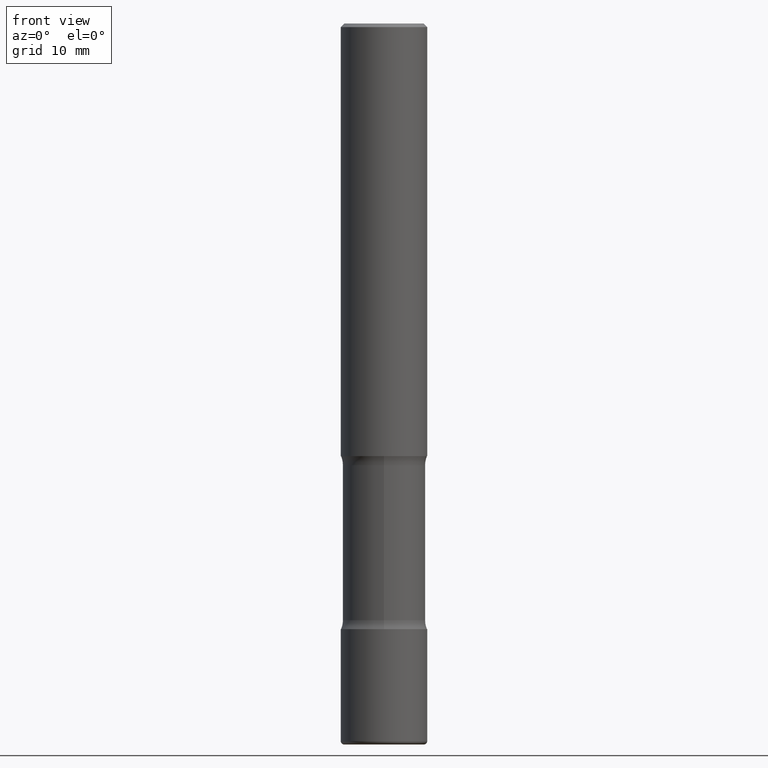
[diagram: clean part render]
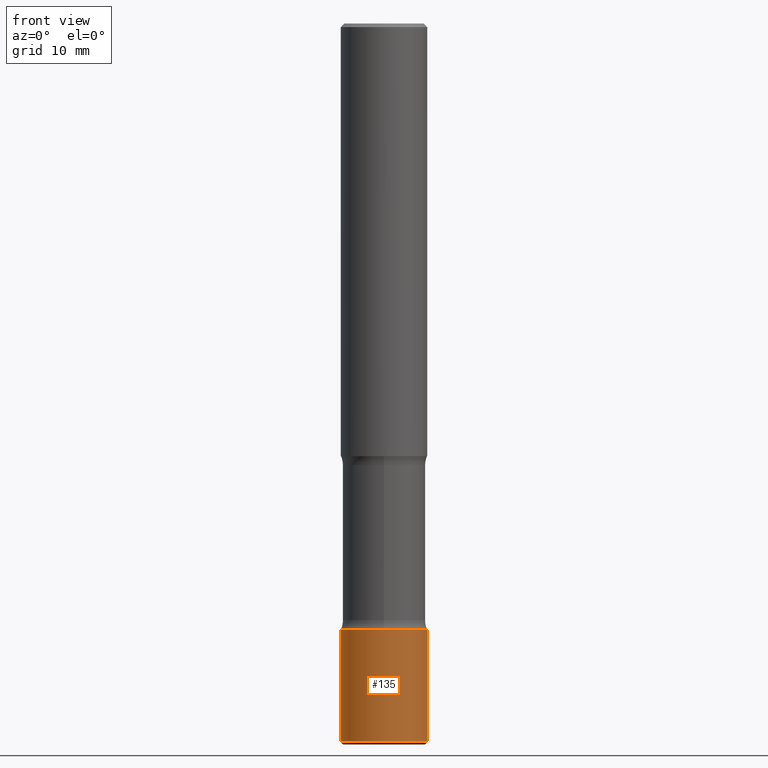
[diagram: same view with one face highlighted and labeled with its STEP entity id]
A machine part, front view. The second image highlights one B-rep face of the part: STEP entity #135.
In plain terms, the highlighted cylindrical surface (partial cylindrical patch) has radius 5.9995 mm, axis along (-0, 0, 1).
Its self-contained STEP definition (entity closure, byte-faithful):
#11 = VERTEX_POINT ( 'NONE', #276 ) ;
#14 = DIRECTION ( 'NONE',  ( 1.000000000000000000, -6.982962677686266711E-15, 0.000000000000000000 ) ) ;
#25 = FACE_OUTER_BOUND ( 'NONE', #315, .T. ) ;
#32 = CARTESIAN_POINT ( 'NONE',  ( -0.2362000000000001598, 1.678301941865357775E-15, -1.161852468318209598E-29 ) ) ;
#48 = ORIENTED_EDGE ( 'NONE', *, *, #444, .F. ) ;
#66 = AXIS2_PLACEMENT_3D ( 'NONE', #362, #448, #328 ) ;
#78 = CARTESIAN_POINT ( 'NONE',  ( -0.2362000000000002431, -1.093362695030385570E-14, -3.307100000000000151 ) ) ;
#81 = LINE ( 'NONE', #297, #88 ) ;
#88 = VECTOR ( 'NONE', #251, 39.37007874015748143 ) ;
#90 = ORIENTED_EDGE ( 'NONE', *, *, #142, .T. ) ;
#135 = ADVANCED_FACE ( 'NONE', ( #25 ), #147, .T. ) ;
#142 = EDGE_CURVE ( 'NONE', #420, #11, #317, .T. ) ;
#147 = CYLINDRICAL_SURFACE ( 'NONE', #436, 0.2362000000000001598 ) ;
#154 = LINE ( 'NONE', #32, #350 ) ;
#159 = ORIENTED_EDGE ( 'NONE', *, *, #558, .T. ) ;
#161 = CARTESIAN_POINT ( 'NONE',  ( 8.087409888934865187E-29, -1.154667793568816723E-14, -3.307100000000000151 ) ) ;
#192 = CARTESIAN_POINT ( 'NONE',  ( 0.000000000000000000, 0.000000000000000000, 0.000000000000000000 ) ) ;
#194 = CIRCLE ( 'NONE', #335, 0.2362000000000002153 ) ;
#198 = DIRECTION ( 'NONE',  ( -2.445468806185136877E-29, 3.491481338843145188E-15, 1.000000000000000000 ) ) ;
#251 = DIRECTION ( 'NONE',  ( -2.445468806185136877E-29, 3.491481338843145188E-15, 1.000000000000000000 ) ) ;
#258 = EDGE_CURVE ( 'NONE', #547, #313, #194, .T. ) ;
#276 = CARTESIAN_POINT ( 'NONE',  ( 0.2362000000000001043, -1.532655563311975191E-14, -3.917300000000000448 ) ) ;
#297 = CARTESIAN_POINT ( 'NONE',  ( 0.2362000000000001598, -1.649375784469497314E-15, 1.151752954443000929E-29 ) ) ;
#307 = DIRECTION ( 'NONE',  ( -2.445468806185136597E-29, 3.491481338843145583E-15, 1.000000000000000000 ) ) ;
#311 = CARTESIAN_POINT ( 'NONE',  ( 0.2362000000000002153, -1.319605372015766534E-14, -3.307100000000000151 ) ) ;
#313 = VERTEX_POINT ( 'NONE', #311 ) ;
#315 = EDGE_LOOP ( 'NONE', ( #48, #90, #159, #480 ) ) ;
#317 = CIRCLE ( 'NONE', #66, 0.2362000000000001321 ) ;
#320 = DIRECTION ( 'NONE',  ( 1.000000000000000000, -6.982962677686266711E-15, 4.876176775795936353E-29 ) ) ;
#328 = DIRECTION ( 'NONE',  ( 1.000000000000000000, -6.982962677686269077E-15, 0.000000000000000000 ) ) ;
#335 = AXIS2_PLACEMENT_3D ( 'NONE', #161, #307, #14 ) ;
#350 = VECTOR ( 'NONE', #198, 39.37007874015748143 ) ;
#362 = CARTESIAN_POINT ( 'NONE',  ( 9.579634954469036932E-29, -1.367717984865025539E-14, -3.917300000000000448 ) ) ;
#399 = CARTESIAN_POINT ( 'NONE',  ( -0.2362000000000001043, -1.199887790678489899E-14, -3.917300000000000448 ) ) ;
#420 = VERTEX_POINT ( 'NONE', #399 ) ;
#436 = AXIS2_PLACEMENT_3D ( 'NONE', #192, #502, #320 ) ;
#444 = EDGE_CURVE ( 'NONE', #420, #547, #154, .T. ) ;
#448 = DIRECTION ( 'NONE',  ( -2.445468806185136597E-29, 3.491481338843145583E-15, 1.000000000000000000 ) ) ;
#480 = ORIENTED_EDGE ( 'NONE', *, *, #258, .F. ) ;
#502 = DIRECTION ( 'NONE',  ( -2.445468806185136597E-29, 3.491481338843145583E-15, 1.000000000000000000 ) ) ;
#547 = VERTEX_POINT ( 'NONE', #78 ) ;
#558 = EDGE_CURVE ( 'NONE', #11, #313, #81, .T. ) ;